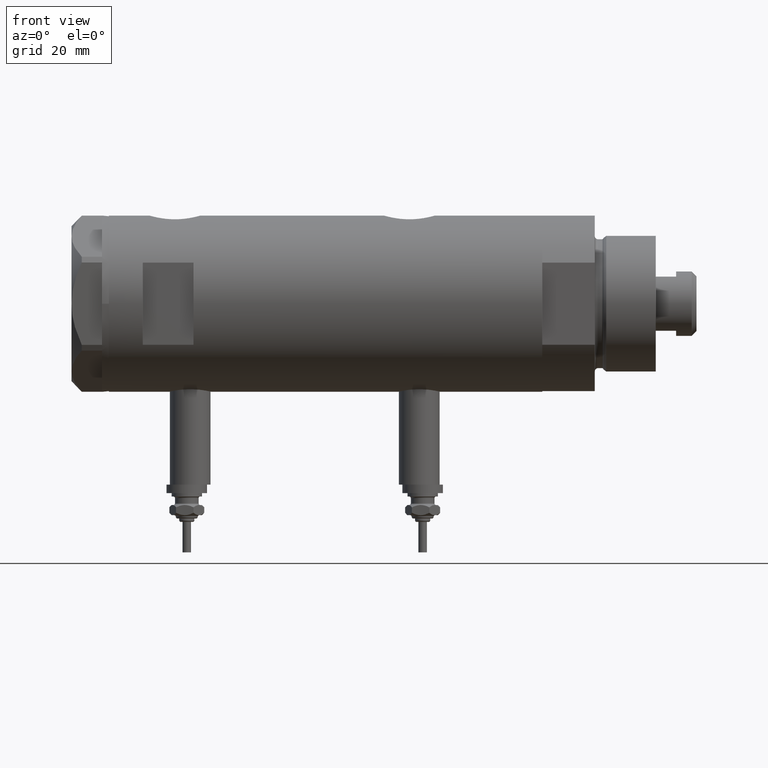
[diagram: clean part render]
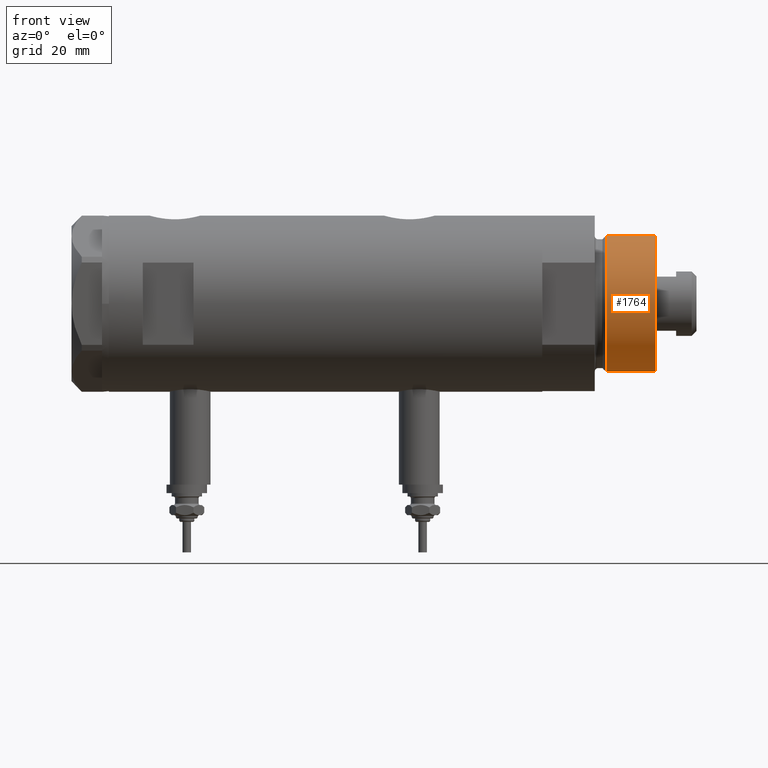
[diagram: same view with one face highlighted and labeled with its STEP entity id]
A machine part, front view. The second image highlights one B-rep face of the part: STEP entity #1764.
In plain terms, the highlighted cylindrical surface (partial cylindrical patch) has radius 20 mm, axis along (-1, -0, 0).
Its self-contained STEP definition (entity closure, byte-faithful):
#149 = DIRECTION ( 'NONE',  ( 1.000000000000000000, 0.000000000000000000, 0.000000000000000000 ) ) ;
#409 = CARTESIAN_POINT ( 'NONE',  ( 19.99999999999999645, 2.449293598294706119E-15, 18.87384048104053846 ) ) ;
#463 = EDGE_CURVE ( 'NONE', #2619, #5609, #3453, .T. ) ;
#499 = VECTOR ( 'NONE', #6039, 1000.000000000000000 ) ;
#783 = CYLINDRICAL_SURFACE ( 'NONE', #1820, 19.99999999999999645 ) ;
#921 = CARTESIAN_POINT ( 'NONE',  ( 0.000000000000000000, 0.000000000000000000, 18.87384048104053846 ) ) ;
#1122 = EDGE_CURVE ( 'NONE', #2619, #5076, #3124, .T. ) ;
#1253 = DIRECTION ( 'NONE',  ( -0.000000000000000000, -0.000000000000000000, -1.000000000000000000 ) ) ;
#1262 = DIRECTION ( 'NONE',  ( -1.000000000000000000, 0.000000000000000000, 0.000000000000000000 ) ) ;
#1430 = CARTESIAN_POINT ( 'NONE',  ( -19.99999999999999645, 0.000000000000000000, 18.87384048104053846 ) ) ;
#1764 = ADVANCED_FACE ( 'NONE', ( #2934 ), #783, .T. ) ;
#1796 = ORIENTED_EDGE ( 'NONE', *, *, #1122, .T. ) ;
#1820 = AXIS2_PLACEMENT_3D ( 'NONE', #2789, #5736, #1262 ) ;
#2272 = CARTESIAN_POINT ( 'NONE',  ( -19.99999999999999645, 0.000000000000000000, 33.50000000000000000 ) ) ;
#2423 = AXIS2_PLACEMENT_3D ( 'NONE', #4456, #5003, #149 ) ;
#2619 = VERTEX_POINT ( 'NONE', #2272 ) ;
#2666 = EDGE_LOOP ( 'NONE', ( #5088, #5760, #1796, #6265 ) ) ;
#2789 = CARTESIAN_POINT ( 'NONE',  ( 0.000000000000000000, 0.000000000000000000, 33.50000000000000000 ) ) ;
#2934 = FACE_OUTER_BOUND ( 'NONE', #2666, .T. ) ;
#3124 = LINE ( 'NONE', #5074, #499 ) ;
#3169 = CARTESIAN_POINT ( 'NONE',  ( 19.99999999999999645, 2.449293598294706119E-15, 33.50000000000000000 ) ) ;
#3205 = EDGE_CURVE ( 'NONE', #5609, #3773, #5031, .T. ) ;
#3453 = CIRCLE ( 'NONE', #2423, 19.99999999999999645 ) ;
#3773 = VERTEX_POINT ( 'NONE', #409 ) ;
#3797 = CARTESIAN_POINT ( 'NONE',  ( 19.99999999999999645, 2.449293598294706119E-15, 33.50000000000000000 ) ) ;
#4456 = CARTESIAN_POINT ( 'NONE',  ( 0.000000000000000000, 0.000000000000000000, 33.50000000000000000 ) ) ;
#4803 = CIRCLE ( 'NONE', #4818, 19.99999999999999645 ) ;
#4818 = AXIS2_PLACEMENT_3D ( 'NONE', #921, #4821, #5381 ) ;
#4821 = DIRECTION ( 'NONE',  ( -0.000000000000000000, -0.000000000000000000, 1.000000000000000000 ) ) ;
#5003 = DIRECTION ( 'NONE',  ( 0.000000000000000000, 0.000000000000000000, 1.000000000000000000 ) ) ;
#5031 = LINE ( 'NONE', #3169, #6233 ) ;
#5074 = CARTESIAN_POINT ( 'NONE',  ( -19.99999999999999645, 0.000000000000000000, 33.50000000000000000 ) ) ;
#5076 = VERTEX_POINT ( 'NONE', #1430 ) ;
#5088 = ORIENTED_EDGE ( 'NONE', *, *, #3205, .F. ) ;
#5381 = DIRECTION ( 'NONE',  ( 1.000000000000000000, 0.000000000000000000, 0.000000000000000000 ) ) ;
#5448 = EDGE_CURVE ( 'NONE', #5076, #3773, #4803, .T. ) ;
#5609 = VERTEX_POINT ( 'NONE', #3797 ) ;
#5736 = DIRECTION ( 'NONE',  ( -0.000000000000000000, -0.000000000000000000, -1.000000000000000000 ) ) ;
#5760 = ORIENTED_EDGE ( 'NONE', *, *, #463, .F. ) ;
#6039 = DIRECTION ( 'NONE',  ( -0.000000000000000000, -0.000000000000000000, -1.000000000000000000 ) ) ;
#6233 = VECTOR ( 'NONE', #1253, 1000.000000000000000 ) ;
#6265 = ORIENTED_EDGE ( 'NONE', *, *, #5448, .T. ) ;